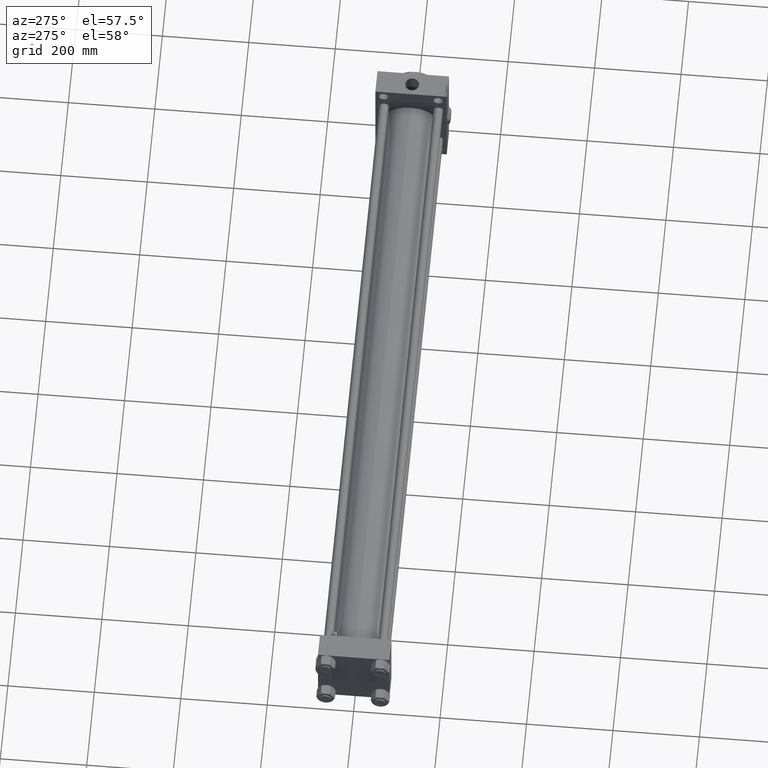
[diagram: clean part render]
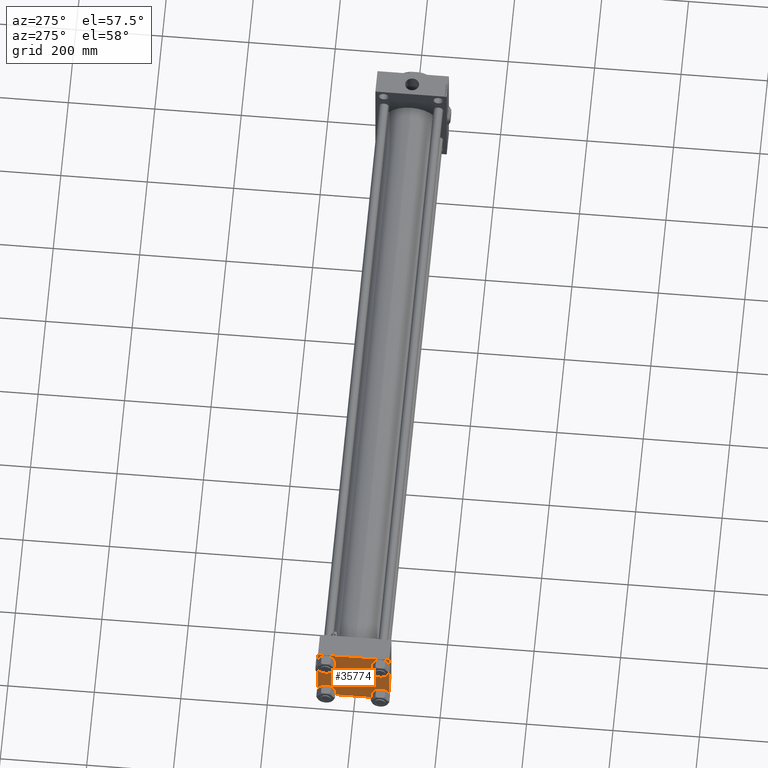
[diagram: same view with one face highlighted and labeled with its STEP entity id]
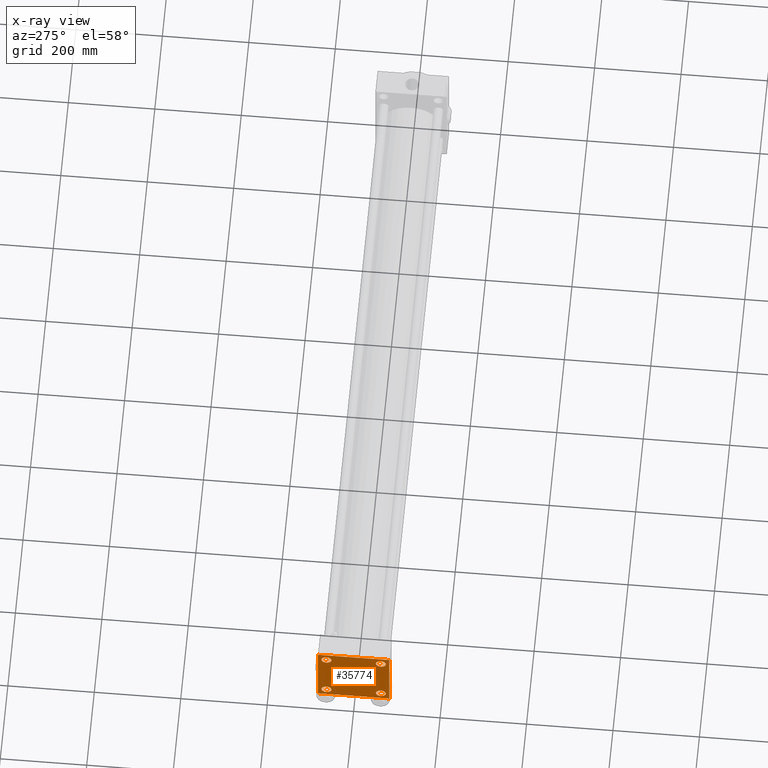
[diagram: x-ray of the same camera — body ghosted, the highlighted face saturated]
A machine part, auxiliary view. The second image highlights one B-rep face of the part: STEP entity #35774.
The next image is the same camera in x-ray: the body ghosted, the highlighted face saturated — about 0% of this face is hidden behind the body in this view.
In plain terms, the highlighted planar face has unit normal (-1, 0, 0).
Its self-contained STEP definition (entity closure, byte-faithful):
#50 = DIRECTION ( 'NONE',  ( 1.000000000000000000, -0.000000000000000000, -0.000000000000000000 ) ) ;
#172 = DIRECTION ( 'NONE',  ( 0.000000000000000000, 0.000000000000000000, 1.000000000000000000 ) ) ;
#323 = VECTOR ( 'NONE', #5280, 1000.000000000000114 ) ;
#363 = EDGE_CURVE ( 'NONE', #35136, #48367, #36689, .T. ) ;
#1285 = LINE ( 'NONE', #13128, #11741 ) ;
#1548 = DIRECTION ( 'NONE',  ( 0.000000000000000000, -1.000000000000000000, -8.410780489584519171E-17 ) ) ;
#1993 = ORIENTED_EDGE ( 'NONE', *, *, #29677, .T. ) ;
#2123 = CARTESIAN_POINT ( 'NONE',  ( 0.000000000000000000, 82.00000000000005684, -82.49999999999997158 ) ) ;
#2480 = AXIS2_PLACEMENT_3D ( 'NONE', #11504, #47010, #43157 ) ;
#2518 = CIRCLE ( 'NONE', #16544, 11.50000000000001066 ) ;
#3089 = VERTEX_POINT ( 'NONE', #4115 ) ;
#3587 = CARTESIAN_POINT ( 'NONE',  ( 0.000000000000000000, 82.00000000000005684, 82.50000000000002842 ) ) ;
#3594 = CARTESIAN_POINT ( 'NONE',  ( 0.000000000000000000, 82.50000000000002842, 82.00000000000005684 ) ) ;
#4115 = CARTESIAN_POINT ( 'NONE',  ( 0.000000000000000000, 62.95000000000000284, -74.45000000000001705 ) ) ;
#4544 = CARTESIAN_POINT ( 'NONE',  ( 0.000000000000000000, 82.50000000000002842, 82.50000000000002842 ) ) ;
#5280 = DIRECTION ( 'NONE',  ( -0.000000000000000000, -0.7071067811865474617, -0.7071067811865474617 ) ) ;
#6612 = DIRECTION ( 'NONE',  ( 0.000000000000000000, -1.682156097916903588E-16, -1.000000000000000000 ) ) ;
#6892 = CARTESIAN_POINT ( 'NONE',  ( 0.000000000000000000, 0.000000000000000000, 0.000000000000000000 ) ) ;
#7039 = DIRECTION ( 'NONE',  ( 0.000000000000000000, 0.000000000000000000, 1.000000000000000000 ) ) ;
#7532 = CARTESIAN_POINT ( 'NONE',  ( 0.000000000000000000, -62.94999999999998153, 62.95000000000001705 ) ) ;
#7725 = ORIENTED_EDGE ( 'NONE', *, *, #10288, .T. ) ;
#7777 = VERTEX_POINT ( 'NONE', #3594 ) ;
#8284 = DIRECTION ( 'NONE',  ( 0.000000000000000000, 0.000000000000000000, 1.000000000000000000 ) ) ;
#8630 = ORIENTED_EDGE ( 'NONE', *, *, #17093, .T. ) ;
#8727 = VECTOR ( 'NONE', #17958, 1000.000000000000000 ) ;
#8919 = LINE ( 'NONE', #20775, #23226 ) ;
#9037 = EDGE_LOOP ( 'NONE', ( #15406, #38097 ) ) ;
#9687 = DIRECTION ( 'NONE',  ( 1.000000000000000000, -0.000000000000000000, -0.000000000000000000 ) ) ;
#10040 = AXIS2_PLACEMENT_3D ( 'NONE', #50025, #26880, #7039 ) ;
#10288 = EDGE_CURVE ( 'NONE', #24965, #38334, #19805, .T. ) ;
#11490 = CARTESIAN_POINT ( 'NONE',  ( 0.000000000000000000, -62.94999999999998153, 62.95000000000001705 ) ) ;
#11504 = CARTESIAN_POINT ( 'NONE',  ( 0.000000000000000000, 62.95000000000000284, 62.95000000000000284 ) ) ;
#11523 = EDGE_CURVE ( 'NONE', #7777, #35136, #24130, .T. ) ;
#11741 = VECTOR ( 'NONE', #28833, 1000.000000000000114 ) ;
#12017 = DIRECTION ( 'NONE',  ( 0.000000000000000000, 0.7071067811865474617, -0.7071067811865474617 ) ) ;
#12060 = VECTOR ( 'NONE', #1548, 1000.000000000000000 ) ;
#13128 = CARTESIAN_POINT ( 'NONE',  ( 0.000000000000000000, -82.25000000000000000, 82.25000000000000000 ) ) ;
#13223 = VERTEX_POINT ( 'NONE', #38365 ) ;
#13852 = ORIENTED_EDGE ( 'NONE', *, *, #17670, .T. ) ;
#14072 = LINE ( 'NONE', #41852, #8727 ) ;
#14186 = CIRCLE ( 'NONE', #10040, 11.50000000000001066 ) ;
#14513 = CARTESIAN_POINT ( 'NONE',  ( 0.000000000000000000, -62.94999999999998153, -51.45000000000000995 ) ) ;
#15406 = ORIENTED_EDGE ( 'NONE', *, *, #33477, .T. ) ;
#15426 = EDGE_CURVE ( 'NONE', #42106, #38392, #1285, .T. ) ;
#15470 = VERTEX_POINT ( 'NONE', #38055 ) ;
#15638 = FACE_BOUND ( 'NONE', #9037, .T. ) ;
#16395 = DIRECTION ( 'NONE',  ( 0.000000000000000000, 0.000000000000000000, 1.000000000000000000 ) ) ;
#16447 = DIRECTION ( 'NONE',  ( 0.000000000000000000, -0.7071067811865376918, 0.7071067811865574537 ) ) ;
#16512 = AXIS2_PLACEMENT_3D ( 'NONE', #27822, #43496, #34529 ) ;
#16544 = AXIS2_PLACEMENT_3D ( 'NONE', #7532, #50, #8284 ) ;
#16715 = EDGE_CURVE ( 'NONE', #42106, #25190, #27206, .T. ) ;
#16787 = EDGE_CURVE ( 'NONE', #38308, #3089, #14186, .T. ) ;
#17073 = CARTESIAN_POINT ( 'NONE',  ( 0.000000000000000000, -82.50000000000000000, -81.99999999999998579 ) ) ;
#17093 = EDGE_CURVE ( 'NONE', #37407, #24033, #42126, .T. ) ;
#17670 = EDGE_CURVE ( 'NONE', #49973, #7777, #8919, .T. ) ;
#17958 = DIRECTION ( 'NONE',  ( 0.000000000000000000, -1.000000000000000000, -1.682156097916903588E-16 ) ) ;
#18366 = CARTESIAN_POINT ( 'NONE',  ( 0.000000000000000000, 62.95000000000000284, 74.45000000000001705 ) ) ;
#18780 = ORIENTED_EDGE ( 'NONE', *, *, #363, .T. ) ;
#19550 = CARTESIAN_POINT ( 'NONE',  ( 0.000000000000000000, -82.25000000000115108, -82.24999999999886313 ) ) ;
#19626 = CARTESIAN_POINT ( 'NONE',  ( 0.000000000000000000, -81.99999999999997158, 82.50000000000001421 ) ) ;
#19805 = CIRCLE ( 'NONE', #16512, 11.50000000000001066 ) ;
#19896 = ORIENTED_EDGE ( 'NONE', *, *, #22129, .T. ) ;
#20775 = CARTESIAN_POINT ( 'NONE',  ( 0.000000000000000000, 82.25000000000002842, 82.25000000000002842 ) ) ;
#21558 = ORIENTED_EDGE ( 'NONE', *, *, #16787, .T. ) ;
#22129 = EDGE_CURVE ( 'NONE', #13223, #25190, #36001, .T. ) ;
#23226 = VECTOR ( 'NONE', #12017, 1000.000000000000114 ) ;
#23375 = FACE_BOUND ( 'NONE', #42666, .T. ) ;
#24033 = VERTEX_POINT ( 'NONE', #14513 ) ;
#24130 = LINE ( 'NONE', #4544, #47743 ) ;
#24701 = CIRCLE ( 'NONE', #2480, 11.50000000000001066 ) ;
#24733 = LINE ( 'NONE', #36822, #12060 ) ;
#24758 = DIRECTION ( 'NONE',  ( 1.000000000000000000, -0.000000000000000000, -0.000000000000000000 ) ) ;
#24932 = CARTESIAN_POINT ( 'NONE',  ( 0.000000000000000000, -62.94999999999998153, -74.45000000000003126 ) ) ;
#24965 = VERTEX_POINT ( 'NONE', #26108 ) ;
#25111 = CARTESIAN_POINT ( 'NONE',  ( 0.000000000000000000, 82.25000000000001421, -82.25000000000001421 ) ) ;
#25190 = VERTEX_POINT ( 'NONE', #17073 ) ;
#25224 = EDGE_CURVE ( 'NONE', #3089, #38308, #33422, .T. ) ;
#26108 = CARTESIAN_POINT ( 'NONE',  ( 0.000000000000000000, 62.95000000000000284, 51.44999999999999574 ) ) ;
#26880 = DIRECTION ( 'NONE',  ( 1.000000000000000000, -0.000000000000000000, -0.000000000000000000 ) ) ;
#27095 = CARTESIAN_POINT ( 'NONE',  ( 0.000000000000000000, 62.95000000000000284, -51.44999999999999574 ) ) ;
#27206 = LINE ( 'NONE', #30061, #37130 ) ;
#27713 = ORIENTED_EDGE ( 'NONE', *, *, #16715, .F. ) ;
#27822 = CARTESIAN_POINT ( 'NONE',  ( 0.000000000000000000, 62.95000000000000284, 62.95000000000000284 ) ) ;
#28367 = CARTESIAN_POINT ( 'NONE',  ( 0.000000000000000000, -62.94999999999998153, -62.95000000000001705 ) ) ;
#28833 = DIRECTION ( 'NONE',  ( -0.000000000000000000, 0.7071067811865474617, 0.7071067811865474617 ) ) ;
#28998 = AXIS2_PLACEMENT_3D ( 'NONE', #28367, #24758, #39917 ) ;
#29124 = CARTESIAN_POINT ( 'NONE',  ( 0.000000000000000000, 82.50000000000002842, -82.00000000000000000 ) ) ;
#29274 = CARTESIAN_POINT ( 'NONE',  ( 0.000000000000000000, -62.94999999999998153, -62.95000000000001705 ) ) ;
#29548 = EDGE_CURVE ( 'NONE', #24033, #37407, #41618, .T. ) ;
#29677 = EDGE_CURVE ( 'NONE', #48367, #13223, #14072, .T. ) ;
#30061 = CARTESIAN_POINT ( 'NONE',  ( 0.000000000000000000, -82.49999999999997158, 82.50000000000001421 ) ) ;
#30733 = EDGE_CURVE ( 'NONE', #49973, #38392, #24733, .T. ) ;
#31473 = ORIENTED_EDGE ( 'NONE', *, *, #15426, .T. ) ;
#31944 = AXIS2_PLACEMENT_3D ( 'NONE', #11490, #38773, #16395 ) ;
#32451 = CARTESIAN_POINT ( 'NONE',  ( 0.000000000000000000, -62.94999999999998153, 51.45000000000000995 ) ) ;
#32651 = DIRECTION ( 'NONE',  ( 0.000000000000000000, 0.000000000000000000, 1.000000000000000000 ) ) ;
#33422 = CIRCLE ( 'NONE', #35058, 11.50000000000001066 ) ;
#33458 = AXIS2_PLACEMENT_3D ( 'NONE', #29274, #9687, #32651 ) ;
#33477 = EDGE_CURVE ( 'NONE', #15470, #43611, #44250, .T. ) ;
#33732 = ORIENTED_EDGE ( 'NONE', *, *, #11523, .T. ) ;
#34529 = DIRECTION ( 'NONE',  ( 0.000000000000000000, 0.000000000000000000, 1.000000000000000000 ) ) ;
#35058 = AXIS2_PLACEMENT_3D ( 'NONE', #36630, #48456, #39439 ) ;
#35136 = VERTEX_POINT ( 'NONE', #29124 ) ;
#35449 = FACE_BOUND ( 'NONE', #50538, .T. ) ;
#35774 = ADVANCED_FACE ( 'NONE', ( #15638, #23375, #46765, #35449, #42153 ), #38290, .T. ) ;
#35781 = EDGE_CURVE ( 'NONE', #38334, #24965, #24701, .T. ) ;
#35962 = DIRECTION ( 'NONE',  ( 0.000000000000000000, 0.000000000000000000, -1.000000000000000000 ) ) ;
#36001 = LINE ( 'NONE', #19550, #48886 ) ;
#36116 = EDGE_CURVE ( 'NONE', #43611, #15470, #2518, .T. ) ;
#36630 = CARTESIAN_POINT ( 'NONE',  ( 0.000000000000000000, 62.95000000000000284, -62.95000000000000284 ) ) ;
#36689 = LINE ( 'NONE', #25111, #323 ) ;
#36822 = CARTESIAN_POINT ( 'NONE',  ( 0.000000000000000000, 82.50000000000002842, 82.50000000000002842 ) ) ;
#37130 = VECTOR ( 'NONE', #6612, 1000.000000000000000 ) ;
#37407 = VERTEX_POINT ( 'NONE', #24932 ) ;
#38055 = CARTESIAN_POINT ( 'NONE',  ( 0.000000000000000000, -62.94999999999998153, 74.45000000000003126 ) ) ;
#38097 = ORIENTED_EDGE ( 'NONE', *, *, #36116, .T. ) ;
#38290 = PLANE ( 'NONE',  #46863 ) ;
#38308 = VERTEX_POINT ( 'NONE', #27095 ) ;
#38334 = VERTEX_POINT ( 'NONE', #18366 ) ;
#38365 = CARTESIAN_POINT ( 'NONE',  ( 0.000000000000000000, -82.00000000000000000, -82.50000000000000000 ) ) ;
#38392 = VERTEX_POINT ( 'NONE', #19626 ) ;
#38658 = EDGE_LOOP ( 'NONE', ( #21558, #44815 ) ) ;
#38773 = DIRECTION ( 'NONE',  ( 1.000000000000000000, -0.000000000000000000, -0.000000000000000000 ) ) ;
#39045 = DIRECTION ( 'NONE',  ( -1.000000000000000000, 0.000000000000000000, 0.000000000000000000 ) ) ;
#39439 = DIRECTION ( 'NONE',  ( 0.000000000000000000, 0.000000000000000000, 1.000000000000000000 ) ) ;
#39917 = DIRECTION ( 'NONE',  ( 0.000000000000000000, 0.000000000000000000, 1.000000000000000000 ) ) ;
#41618 = CIRCLE ( 'NONE', #33458, 11.50000000000001066 ) ;
#41852 = CARTESIAN_POINT ( 'NONE',  ( 0.000000000000000000, 82.50000000000002842, -82.49999999999997158 ) ) ;
#42106 = VERTEX_POINT ( 'NONE', #43267 ) ;
#42126 = CIRCLE ( 'NONE', #28998, 11.50000000000001066 ) ;
#42153 = FACE_OUTER_BOUND ( 'NONE', #45837, .T. ) ;
#42666 = EDGE_LOOP ( 'NONE', ( #49898, #8630 ) ) ;
#43098 = ORIENTED_EDGE ( 'NONE', *, *, #30733, .F. ) ;
#43157 = DIRECTION ( 'NONE',  ( 0.000000000000000000, 0.000000000000000000, 1.000000000000000000 ) ) ;
#43267 = CARTESIAN_POINT ( 'NONE',  ( 0.000000000000000000, -82.49999999999997158, 82.00000000000001421 ) ) ;
#43496 = DIRECTION ( 'NONE',  ( 1.000000000000000000, -0.000000000000000000, -0.000000000000000000 ) ) ;
#43611 = VERTEX_POINT ( 'NONE', #32451 ) ;
#44250 = CIRCLE ( 'NONE', #31944, 11.50000000000001066 ) ;
#44815 = ORIENTED_EDGE ( 'NONE', *, *, #25224, .T. ) ;
#45837 = EDGE_LOOP ( 'NONE', ( #33732, #18780, #1993, #19896, #27713, #31473, #43098, #13852 ) ) ;
#46765 = FACE_BOUND ( 'NONE', #38658, .T. ) ;
#46863 = AXIS2_PLACEMENT_3D ( 'NONE', #6892, #39045, #172 ) ;
#47010 = DIRECTION ( 'NONE',  ( 1.000000000000000000, -0.000000000000000000, -0.000000000000000000 ) ) ;
#47743 = VECTOR ( 'NONE', #35962, 1000.000000000000000 ) ;
#48367 = VERTEX_POINT ( 'NONE', #2123 ) ;
#48456 = DIRECTION ( 'NONE',  ( 1.000000000000000000, -0.000000000000000000, -0.000000000000000000 ) ) ;
#48886 = VECTOR ( 'NONE', #16447, 999.9999999999998863 ) ;
#49898 = ORIENTED_EDGE ( 'NONE', *, *, #29548, .T. ) ;
#49973 = VERTEX_POINT ( 'NONE', #3587 ) ;
#50025 = CARTESIAN_POINT ( 'NONE',  ( 0.000000000000000000, 62.95000000000000284, -62.95000000000000284 ) ) ;
#50518 = ORIENTED_EDGE ( 'NONE', *, *, #35781, .T. ) ;
#50538 = EDGE_LOOP ( 'NONE', ( #50518, #7725 ) ) ;